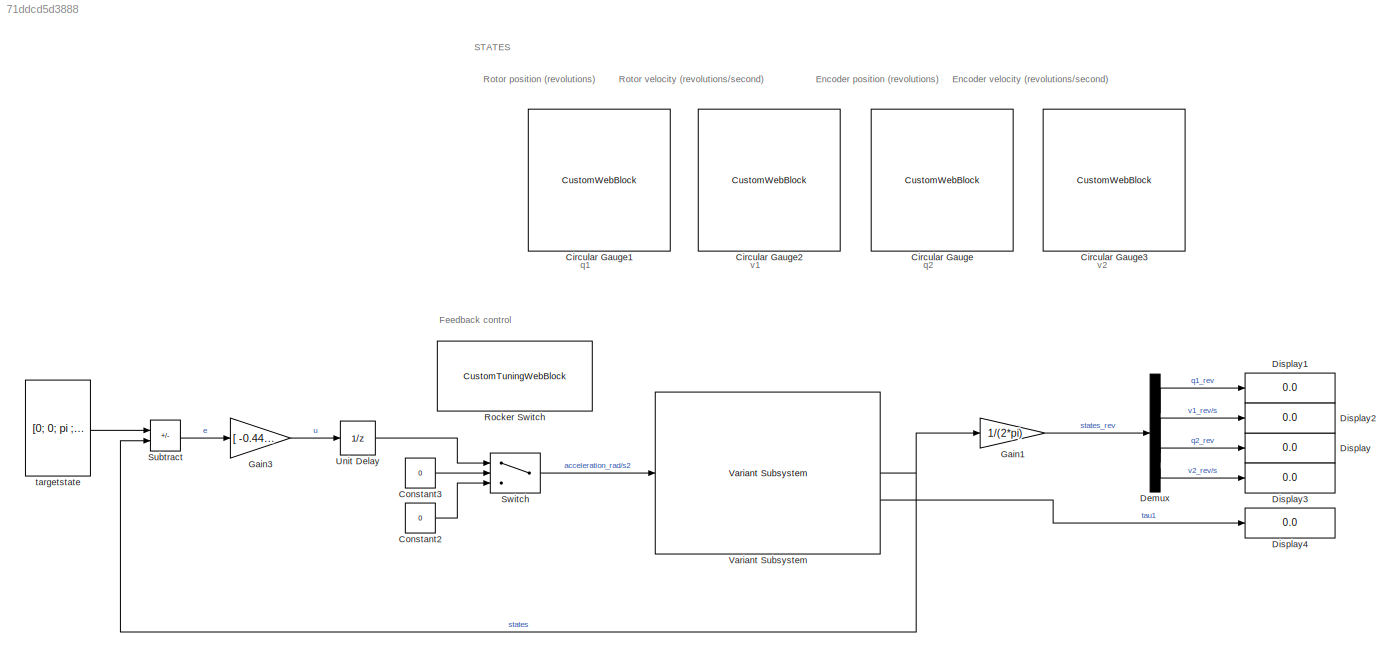
MODEL slx_71ddcd5d3888
KIND model
CONFIG AbsTol = auto
CONFIG EnableMultiTasking = on
CONFIG FixedStep = 0.001
CONFIG MaxStep = auto
CONFIG MinStep = auto
CONFIG PreLoadFcn = %define mechanical pars, init conditions\nrun RRpendulum_Parameters_num.m\n\n% sample time\nT_SAMPLE = 0.001;\n\n%microsteps per turn of 200 step motor @ x16 microstepping\nSTEPS_PER_TURN = 3200; \n\n%encoder counts per turn\nCOUNTS_PER_TURN = 2400;
CONFIG RelTol = 1e-3
CONFIG SampleTimeConstraint = Unconstrained
CONFIG SolverName = FixedStepAuto
CONFIG StartTime = 0.0
CONFIG StopTime = inf
BLOCK [CustomWebBlock] Circular Gauge
  Configuration = {"components":[{"name":"CircularScaleComponent","settings":{"bounds":{"max":1,"min":-1,"tickInterval":"auto"},"direction":"cw","flipLimits":0,"innerRadius":0.75,"internalTickHeightScaleFactor":1,"labelColor":[255,255,200],"labelFont":{"font":"Arial","fontSize":12},"labelRadius":0.528,"labelTransparency":1,"minorTickHeightScaleFactor":0.2,"needleImage":{"size":[200,50],"src":"data:image\/svg+xml;ba...<+12910ch>
  LabelPosition = Hide
  ShowInitialText = on
BLOCK [CustomWebBlock] Circular Gauge1
  Configuration = {"components":[{"name":"CircularScaleComponent","settings":{"bounds":{"max":1,"min":-1,"tickInterval":"auto"},"direction":"cw","flipLimits":0,"innerRadius":0.75,"internalTickHeightScaleFactor":1,"labelColor":[255,255,200],"labelFont":{"font":"Arial","fontSize":12},"labelRadius":0.528,"labelTransparency":1,"minorTickHeightScaleFactor":0.2,"needleImage":{"size":[200,50],"src":"data:image\/svg+xml;ba...<+12910ch>
  LabelPosition = Hide
  ShowInitialText = on
BLOCK [CustomWebBlock] Circular Gauge2
  Configuration = {"components":[{"name":"CircularScaleComponent","settings":{"bounds":{"max":2,"min":-2,"tickInterval":"auto"},"direction":"cw","flipLimits":0,"innerRadius":0.75,"internalTickHeightScaleFactor":1,"labelColor":[255,255,200],"labelFont":{"font":"Arial","fontSize":12},"labelRadius":0.528,"labelTransparency":1,"minorTickHeightScaleFactor":0.2,"needleImage":{"size":[200,50],"src":"data:image\/svg+xml;ba...<+12910ch>
  LabelPosition = Hide
  ShowInitialText = on
BLOCK [CustomWebBlock] Circular Gauge3
  Configuration = {"components":[{"name":"CircularScaleComponent","settings":{"bounds":{"max":2,"min":-2,"tickInterval":"auto"},"direction":"cw","flipLimits":0,"innerRadius":0.75,"internalTickHeightScaleFactor":1,"labelColor":[255,255,200],"labelFont":{"font":"Arial","fontSize":12},"labelRadius":0.528,"labelTransparency":1,"minorTickHeightScaleFactor":0.2,"needleImage":{"size":[200,50],"src":"data:image\/svg+xml;ba...<+12910ch>
  LabelPosition = Hide
  ShowInitialText = on
BLOCK [Constant] Constant2
  Value = 0
BLOCK [Constant] Constant3
  Value = 0
BLOCK [Demux] Demux
BLOCK [Display] Display
  Decimation = 1
BLOCK [Display] Display1
  Decimation = 1
BLOCK [Display] Display2
  Decimation = 1
BLOCK [Display] Display3
  Decimation = 1
BLOCK [Display] Display4
  Decimation = 1
BLOCK [Gain] Gain1
  Gain = 1/(2*pi)
BLOCK [Gain] Gain3
  Gain = [ -0.4457   -1.1846  164.7194   24.7978]
  Multiplication = Matrix(K*u)
BLOCK [CustomTuningWebBlock] Rocker Switch
  Configuration = {"components":[{"name":"CustomSwitchStateComponent","settings":{"position":[0,0,1,1],"states":[{"HitRegion":{"position":[0,0,0.5,1]},"Image":{"position":[0.13,0,1,0.75],"size":[1,0.75],"src":"data:image\/svg+xml;base64,PHN2ZyB4bWxucz0iaHR0cDovL3d3dy53My5vcmcvMjAwMC9zdmciIHhtbG5zOnhsaW5rPSJodHRwOi8vd3d3LnczLm9yZy8xOTk5L3hsaW5rIiB2aWV3Qm94PSIwIDAgNzUgMjQuOCI+PGRlZnM+PHN0eWxlPi5jbHMtMXtmaWxsOnVybCgjc...<+9110ch>
  LabelPosition = Hide
  ShowInitialText = on
BLOCK [Sum] Subtract
  IconShape = rectangular
  Inputs = +-
BLOCK [Switch] Switch
  Criteria = u2 > Threshold
  InputSameDT = off
  SaturateOnIntegerOverflow = off
BLOCK [UnitDelay] Unit Delay
  HasFrameUpgradeWarning = on
  SampleTime = -1
BLOCK [Reference] Variant Subsystem  REF=digtwin_labo_lib/Variant Subsystem  (lib defined in slx_912b749dec0a)
  SourceBlock = digtwin_labo_lib/Variant Subsystem
  SourceType = SubSystem
BLOCK [Constant] targetstate
  Value = [0; 0; pi ; 0]
  VectorParams1D = off
ANNOTATION (root): Feedback control
ANNOTATION (root): q1
ANNOTATION (root): q2
ANNOTATION (root): v1
ANNOTATION (root): v2
ANNOTATION (root): Encoder position (revolutions)
ANNOTATION (root): Encoder velocity (revolutions/second)
ANNOTATION (root): Rotor position (revolutions)
ANNOTATION (root): Rotor velocity (revolutions/second)
ANNOTATION (root): STATES
LINE Constant2:1 -> Switch:3
LINE Constant3:1 -> Switch:2
LINE Demux:1 -> Display1:1
LINE Demux:2 -> Display2:1
LINE Demux:3 -> Display:1
LINE Demux:4 -> Display3:1
LINE Gain1:1 -> Demux:1
LINE Gain3:1 -> Unit Delay:1
LINE Subtract:1 -> Gain3:1
LINE Switch:1 -> Variant Subsystem:1
LINE Unit Delay:1 -> Switch:1
NET Variant Subsystem:1 -> Gain1:1, Subtract:2
LINE Variant Subsystem:2 -> Display4:1
LINE targetstate:1 -> Subtract:1
note: NET lines group one-source signal fan-out (src -> all destinations, sorted); 1:1 wires keep LINE
